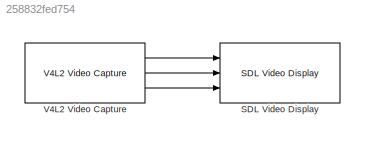
MODEL slx_258832fed754
KIND model
CONFIG AbsTol = auto
CONFIG EnableMultiTasking = on
CONFIG FixedStep = auto
CONFIG MaxStep = auto
CONFIG MinStep = auto
CONFIG RelTol = 1e-3
CONFIG SampleTimeConstraint = Unconstrained
CONFIG Solver = FixedStepAuto
CONFIG SolverName = FixedStepAuto
CONFIG StartTime = 0.0
CONFIG StopTime = inf
BLOCK [Reference] SDL Video Display  REF=bbbluevideolib/SDL Video Display
  Ports = [3]
  SourceBlock = bbbluevideolib/SDL Video Display
  SourceProductName = Simulink Coder Support Package for BeagleBone Blue Hardware
  SourceType = SDL Video Display
BLOCK [Reference] V4L2 Video Capture  REF=bbbluevideolib/V4L2 Video Capture
  Ports = [0, 3]
  SourceBlock = bbbluevideolib/V4L2 Video Capture
  SourceProductName = Simulink Coder Support Package for BeagleBone Blue Hardware
  SourceType = V4L2 Video Capture
LINE V4L2 Video Capture:1 -> SDL Video Display:1
LINE V4L2 Video Capture:2 -> SDL Video Display:2
LINE V4L2 Video Capture:3 -> SDL Video Display:3
